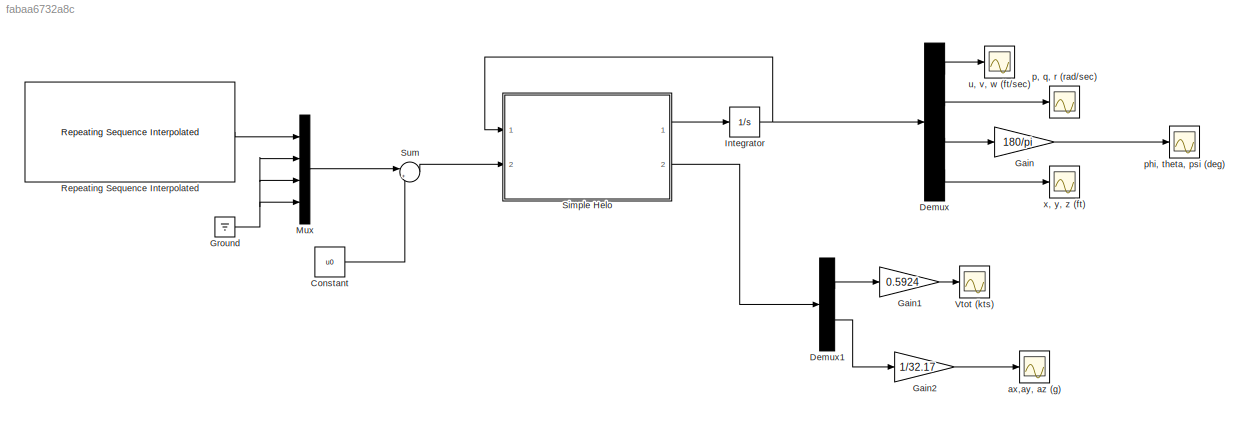
MODEL slx_fabaa6732a8c
KIND model
CONFIG AbsTol = auto
CONFIG EnableMultiTasking = off
CONFIG FixedStep = auto
CONFIG MaxStep = auto
CONFIG MinStep = auto
CONFIG RelTol = 1e-3
CONFIG SampleTimeConstraint = Unconstrained
CONFIG SolverName = VariableStepAuto
CONFIG StartTime = 0.0
CONFIG StopTime = 35.
BLOCK [Constant] Constant
  Value = u0
BLOCK [Demux] Demux
  Outputs = [3;3;3;3]
  Ports = [1, 4]
BLOCK [Demux] Demux1
  Outputs = [1;3]
  Ports = [1, 2]
BLOCK [Gain] Gain
  Gain = 180/pi
BLOCK [Gain] Gain1
  Gain = 0.5924
BLOCK [Gain] Gain2
  Gain = 1/32.17
BLOCK [Ground] Ground
BLOCK [Integrator] Integrator
  InitialCondition = x0
  Ports = [1, 1]
BLOCK [Mux] Mux
  DisplayOption = bar
  Ports = [4, 1]
BLOCK [Reference] Repeating Sequence Interpolated  REF=simulink/Sources/Repeating
Sequence
Interpolated
  Ports = [0, 1]
  SourceBlock = simulink/Sources/Repeating\nSequence\nInterpolated
  SourceProductBaseCode = SL
  SourceType = Repeating Sequence Interpolated
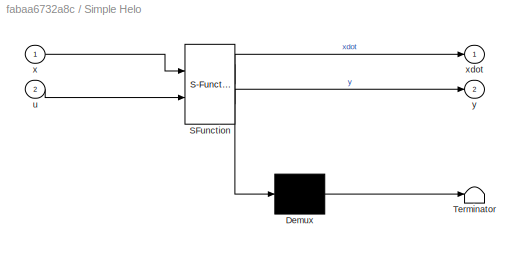
BLOCK [SubSystem] Simple Helo
  ErrorFcn = Stateflow.Translate.translate
  PermitHierarchicalResolution = ExplicitOnly
  Ports = [2, 2]
  RequestExecContextInheritance = off
  SFBlockType = MATLAB Function
  TreatAsAtomicUnit = on
BLOCK [Demux] Simple Helo/ Demux 
  Outputs = 1
  Ports = [1, 1]
BLOCK [S-Function] Simple Helo/ SFunction 
  EnableBusSupport = on
  FunctionName = sf_sfun
  Parameters = constants
  PortCounts = [2 3]
  Ports = [2, 3]
  SFcnIsStateOwnerBlock = off
  SFunctionDeploymentMode = off
  Tag = Stateflow S-Function 2
BLOCK [Terminator] Simple Helo/ Terminator 
BLOCK [Inport] Simple Helo/u
  Port = 2
BLOCK [Inport] Simple Helo/x
BLOCK [Outport] Simple Helo/xdot
BLOCK [Outport] Simple Helo/y
  Port = 2
BLOCK [Sum] Sum
  Inputs = |++
  Ports = [2, 1]
BLOCK [Scope] Vtot (kts)
  Floating = off
  NumInputPorts = 1
  Ports = [1]
  ScopeSpecificationString = Simulink.scopes.TimeScopeBlockCfg('CurrentConfiguration', extmgr.ConfigurationSet(extmgr.Configuration('Core','General UI',true),extmgr.Configuration('Core','Source UI',true),extmgr.Configuration('Sources','WiredSimulink',true,'DataLoggingVariableName','ScopeData1'),extmgr.Configuration('Visuals','Time Domain',true,'SerializedDisplays',{struct('MinYLimReal','-0.30296','MaxYLimReal','2.78585','YLab...<+1364ch>
BLOCK [Scope] ax,ay, az (g)
  Floating = off
  NumInputPorts = 1
  Ports = [1]
  ScopeSpecificationString = Simulink.scopes.TimeScopeBlockCfg('CurrentConfiguration', extmgr.ConfigurationSet(extmgr.Configuration('Core','General UI',true),extmgr.Configuration('Core','Source UI',true),extmgr.Configuration('Sources','WiredSimulink',true),extmgr.Configuration('Visuals','Time Domain',true,'SerializedDisplays',{struct('MinYLimReal','-1.12961','MaxYLimReal','0.12906','YLabelReal','','MinYLimMag','0.00000','MaxY...<+1347ch>
BLOCK [Scope] p, q, r (rad//sec)
  Floating = off
  NumInputPorts = 1
  Ports = [1]
  ScopeSpecificationString = Simulink.scopes.TimeScopeBlockCfg('CurrentConfiguration', extmgr.ConfigurationSet(extmgr.Configuration('Core','General UI',true),extmgr.Configuration('Core','Source UI',true),extmgr.Configuration('Sources','WiredSimulink',true,'DataLoggingVariableName','AngularRates','DataLogging',true),extmgr.Configuration('Visuals','Time Domain',true,'SerializedDisplays',{struct('MinYLimReal','-0.04101','MaxYLim...<+1439ch>
BLOCK [Scope] phi, theta, psi (deg)
  Floating = off
  NumInputPorts = 1
  Ports = [1]
  ScopeSpecificationString = Simulink.scopes.TimeScopeBlockCfg('CurrentConfiguration', extmgr.ConfigurationSet(extmgr.Configuration('Core','General UI',true),extmgr.Configuration('Core','Source UI',true),extmgr.Configuration('Sources','WiredSimulink',true,'DataLoggingVariableName','Attitudes','DataLogging',true),extmgr.Configuration('Visuals','Time Domain',true,'SerializedDisplays',{struct('MinYLimReal','-15.15449','MaxYLimRe...<+1437ch>
BLOCK [Scope] u, v, w (ft//sec)
  Floating = off
  NumInputPorts = 1
  Ports = [1]
  ScopeSpecificationString = Simulink.scopes.TimeScopeBlockCfg('CurrentConfiguration', extmgr.ConfigurationSet(extmgr.Configuration('Core','General UI',true),extmgr.Configuration('Core','Source UI',true),extmgr.Configuration('Sources','WiredSimulink',true,'DataLoggingVariableName','BodyVel','DataLogging',true),extmgr.Configuration('Visuals','Time Domain',true,'SerializedDisplays',{struct('MinYLimReal','-2.56656','MaxYLimReal'...<+1404ch>
BLOCK [Scope] x, y, z (ft)
  Floating = off
  NumInputPorts = 1
  Ports = [1]
  ScopeSpecificationString = Simulink.scopes.TimeScopeBlockCfg('CurrentConfiguration', extmgr.ConfigurationSet(extmgr.Configuration('Core','General UI',true),extmgr.Configuration('Core','Source UI',true),extmgr.Configuration('Sources','WiredSimulink',true,'DataLoggingVariableName','Positions','DataLogging',true),extmgr.Configuration('Visuals','Time Domain',true,'SerializedDisplays',{struct('MinYLimReal','-8.96627','MaxYLimRea...<+1440ch>
LINE Constant:1 -> Sum:2
LINE Demux1:1 -> Gain1:1
LINE Demux1:2 -> Gain2:1
LINE Demux:1 -> u, v, w (ft//sec):1
LINE Demux:2 -> p, q, r (rad//sec):1
LINE Demux:3 -> Gain:1
LINE Demux:4 -> x, y, z (ft):1
LINE Gain1:1 -> Vtot (kts):1
LINE Gain2:1 -> ax,ay, az (g):1
LINE Gain:1 -> phi, theta, psi (deg):1
NET Ground:1 -> Mux:2, Mux:3, Mux:4
NET Integrator:1 -> Demux:1, Simple Helo:1
LINE Mux:1 -> Sum:1
LINE Repeating Sequence Interpolated:1 -> Mux:1
LINE Simple Helo:1 -> Integrator:1
LINE Simple Helo:2 -> Demux1:1
LINE Sum:1 -> Simple Helo:2
note: NET lines group one-source signal fan-out (src -> all destinations, sorted); 1:1 wires keep LINE
CHART Simple Helo states=1 transitions=1
  STATE_LABEL 'eML_blk_kernel()'
  STATE_LABEL 'SCRIPT:\nfunction [xdot,y] = fcn(x,u,constants)\n%eml\n[xdot,y] = SimpleHelo(x,u,[],constants);\n'
CHART  states=0 transitions=0
